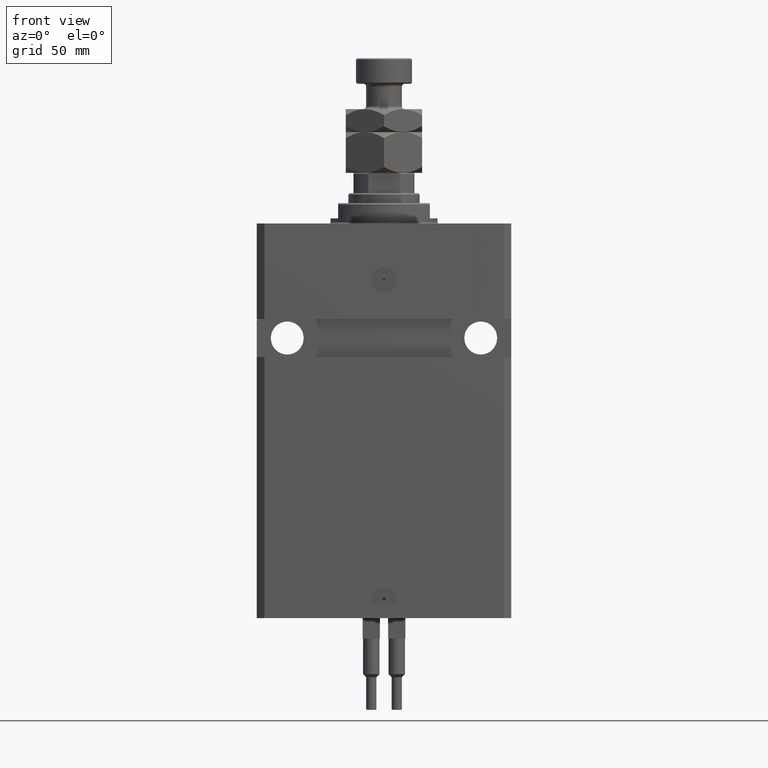
[diagram: clean part render]
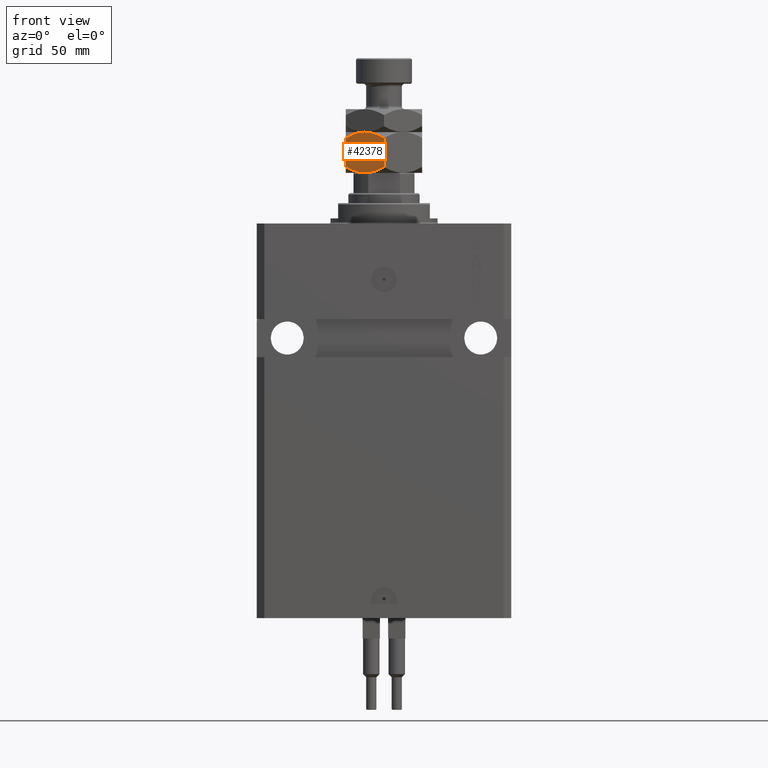
[diagram: same view with one face highlighted and labeled with its STEP entity id]
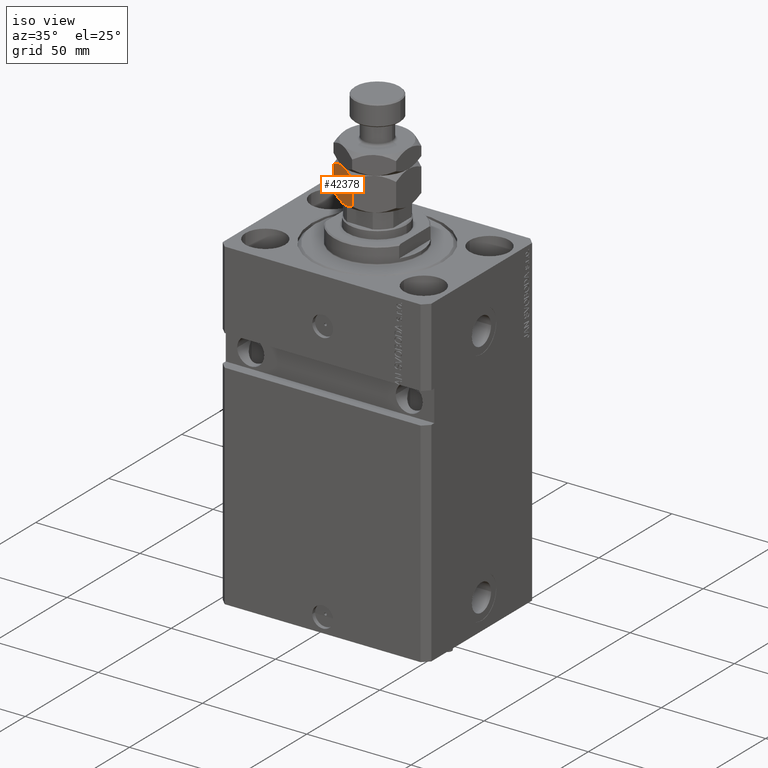
[diagram: same view with one face highlighted and labeled with its STEP entity id]
A machine part, front view. The second image highlights one B-rep face of the part: STEP entity #42378.
A second angle (iso view) of the same face is appended — the face is thin or edge-on in the first view.
In plain terms, the highlighted planar face has unit normal (0.5, 0.866, 0).
Its self-contained STEP definition (entity closure, byte-faithful):
#786 = CARTESIAN_POINT ( 'NONE',  ( -7.500000000000000000, -12.99038105676658006, 0.000000000000000000 ) ) ;
#1611 = CARTESIAN_POINT ( 'NONE',  ( -3.416099238086855886E-15, -17.32050807568877104, 13.67949192431124317 ) ) ;
#1896 = VECTOR ( 'NONE', #45554, 1000.000000000000000 ) ;
#2331 = FACE_OUTER_BOUND ( 'NONE', #37812, .T. ) ;
#2911 = ORIENTED_EDGE ( 'NONE', *, *, #20143, .T. ) ;
#6367 = CARTESIAN_POINT ( 'NONE',  ( -7.500000000000000000, -12.99038105676658006, 0.000000000000000000 ) ) ;
#6523 = CARTESIAN_POINT ( 'NONE',  ( -2.378834511187505996, -15.94708733029708725, 1.064486067744005560 ) ) ;
#6677 = CARTESIAN_POINT ( 'NONE',  ( -14.99999999999999645, -8.660254037844389075, 16.00000000000000000 ) ) ;
#6817 = ORIENTED_EDGE ( 'NONE', *, *, #14100, .F. ) ;
#7225 = CARTESIAN_POINT ( 'NONE',  ( -14.99999999999999645, -8.660254037844389075, 13.67949192431124139 ) ) ;
#7462 = VERTEX_POINT ( 'NONE', #1611 ) ;
#7729 = CARTESIAN_POINT ( 'NONE',  ( -13.82389157469335750, -9.339280553791368789, 14.35851844025821933 ) ) ;
#11066 = LINE ( 'NONE', #26180, #18477 ) ;
#11822 = CARTESIAN_POINT ( 'NONE',  ( -10.75222765045651308, -11.11270654730956409, 15.55242859148697576 ) ) ;
#14100 = EDGE_CURVE ( 'NONE', #43569, #19627, #25364, .T. ) ;
#14226 = CARTESIAN_POINT ( 'NONE',  ( -4.247772349543487813, -14.86805556622358893, 0.4475714085130264031 ) ) ;
#15871 = CARTESIAN_POINT ( 'NONE',  ( -7.500000000000001776, -12.99038105676658361, 16.00000000000000000 ) ) ;
#17416 = CARTESIAN_POINT ( 'NONE',  ( -13.82525345580783060, -9.338494271363318333, 1.642267842169780279 ) ) ;
#18166 = CARTESIAN_POINT ( 'NONE',  ( -14.99999999999999645, -8.660254037844389075, 2.320508075688762606 ) ) ;
#18477 = VECTOR ( 'NONE', #41828, 1000.000000000000000 ) ;
#18585 = CARTESIAN_POINT ( 'NONE',  ( -6.843123817691746602, -13.36962869744650284, -3.760826285809093999E-16 ) ) ;
#19015 = CARTESIAN_POINT ( 'NONE',  ( -8.823580389329300999, -12.22621156269320331, 15.94046462602529957 ) ) ;
#19329 = ORIENTED_EDGE ( 'NONE', *, *, #25485, .F. ) ;
#19627 = VERTEX_POINT ( 'NONE', #786 ) ;
#20143 = EDGE_CURVE ( 'NONE', #37681, #31588, #38363, .T. ) ;
#20228 = CARTESIAN_POINT ( 'NONE',  ( -6.195449321423087241, -13.74356374221446586, 16.00000000000001066 ) ) ;
#20383 = ORIENTED_EDGE ( 'NONE', *, *, #38809, .F. ) ;
#22161 = CARTESIAN_POINT ( 'NONE',  ( -1.176108425306644722, -16.64148155974179488, 1.641481559741788665 ) ) ;
#22314 = DIRECTION ( 'NONE',  ( 0.5000000000000000000, 0.8660254037844387076, -0.000000000000000000 ) ) ;
#22429 = B_SPLINE_CURVE_WITH_KNOTS ( 'NONE', 3,
 ( #15871, #20228, #35861, #31010, #47150, #31263 ),
 .UNSPECIFIED., .F., .F.,
 ( 4, 2, 4 ),
 ( 0.008977392552884447263, 0.01343452311421656359, 0.01789165367554867991 ),
 .UNSPECIFIED. ) ;
#22861 = CARTESIAN_POINT ( 'NONE',  ( -12.62116548881249223, -10.03367478323606221, 14.93551393225599533 ) ) ;
#25166 = PLANE ( 'NONE',  #46301 ) ;
#25364 = B_SPLINE_CURVE_WITH_KNOTS ( 'NONE', 3,
 ( #33966, #22161, #6523, #14226, #41918, #50114, #18585, #45763 ),
 .UNSPECIFIED., .F., .F.,
 ( 4, 2, 2, 4 ),
 ( 2.544309033648719118E-07, 0.004488823491893905240, 0.006733108022389175384, 0.008977392552884445528 ),
 .UNSPECIFIED. ) ;
#25485 = EDGE_CURVE ( 'NONE', #7462, #43569, #11066, .T. ) ;
#25627 = EDGE_CURVE ( 'NONE', #37681, #46868, #34227, .T. ) ;
#26180 = CARTESIAN_POINT ( 'NONE',  ( -3.035766082959412415E-15, -17.32050807568877104, 16.00000000000000000 ) ) ;
#26358 = CARTESIAN_POINT ( 'NONE',  ( -10.08691881950258740, -11.49682277995505331, 0.2303299219392165864 ) ) ;
#31010 = CARTESIAN_POINT ( 'NONE',  ( -2.383929548160354628, -15.94414570932928576, 14.93952096862912526 ) ) ;
#31263 = CARTESIAN_POINT ( 'NONE',  ( -3.416099238086855886E-15, -17.32050807568877104, 13.67949192431124317 ) ) ;
#31588 = VERTEX_POINT ( 'NONE', #50193 ) ;
#33966 = CARTESIAN_POINT ( 'NONE',  ( -2.796947266322166691E-15, -17.32050807568877104, 2.320508075688761718 ) ) ;
#34227 = B_SPLINE_CURVE_WITH_KNOTS ( 'NONE', 3,
 ( #7225, #7729, #22861, #11822, #46698, #19015, #38497, #34900 ),
 .UNSPECIFIED., .F., .F.,
 ( 4, 2, 2, 4 ),
 ( 2.544309033641602453E-07, 0.004488823491893906108, 0.006733108022389176252, 0.008977392552884447263 ),
 .UNSPECIFIED. ) ;
#34900 = CARTESIAN_POINT ( 'NONE',  ( -7.500000000000001776, -12.99038105676658361, 16.00000000000000000 ) ) ;
#35861 = CARTESIAN_POINT ( 'NONE',  ( -4.913081180497412603, -14.48393933357810504, 15.76967007806078946 ) ) ;
#37681 = VERTEX_POINT ( 'NONE', #43364 ) ;
#37812 = EDGE_LOOP ( 'NONE', ( #6817, #19329, #20383, #47107, #2911, #44210 ) ) ;
#37973 = DIRECTION ( 'NONE',  ( -0.8660254037844385966, 0.4999999999999999445, 0.000000000000000000 ) ) ;
#38113 = CARTESIAN_POINT ( 'NONE',  ( -14.99999999999999645, -8.660254037844389075, 16.00000000000000000 ) ) ;
#38363 = LINE ( 'NONE', #38113, #1896 ) ;
#38497 = CARTESIAN_POINT ( 'NONE',  ( -8.156876182308250733, -12.61113341608665905, 16.00000000000000355 ) ) ;
#38809 = EDGE_CURVE ( 'NONE', #46868, #7462, #22429, .T. ) ;
#40054 = EDGE_CURVE ( 'NONE', #19627, #31588, #43139, .T. ) ;
#41006 = CARTESIAN_POINT ( 'NONE',  ( -8.804550678576912759, -12.23719837131869248, -4.878909776184767981E-16 ) ) ;
#41828 = DIRECTION ( 'NONE',  ( -0.000000000000000000, -0.000000000000000000, -1.000000000000000000 ) ) ;
#41918 = CARTESIAN_POINT ( 'NONE',  ( -4.881674457977378090, -14.50207201327941320, 0.2838026619462943323 ) ) ;
#42007 = CARTESIAN_POINT ( 'NONE',  ( -12.61607045183964715, -10.03661640420386902, 1.060479031370877845 ) ) ;
#42378 = ADVANCED_FACE ( 'NONE', ( #2331 ), #25166, .F. ) ;
#42589 = CARTESIAN_POINT ( 'NONE',  ( -2.796947266322166691E-15, -17.32050807568877104, 2.320508075688761718 ) ) ;
#42974 = CARTESIAN_POINT ( 'NONE',  ( -7.500000000000001776, -12.99038105676658361, 16.00000000000000000 ) ) ;
#43139 = B_SPLINE_CURVE_WITH_KNOTS ( 'NONE', 3,
 ( #6367, #41006, #26358, #42007, #17416, #18166 ),
 .UNSPECIFIED., .F., .F.,
 ( 4, 2, 4 ),
 ( 0.008977392552884445528, 0.01343452311421656012, 0.01789165367554867297 ),
 .UNSPECIFIED. ) ;
#43364 = CARTESIAN_POINT ( 'NONE',  ( -14.99999999999999645, -8.660254037844389075, 13.67949192431124139 ) ) ;
#43569 = VERTEX_POINT ( 'NONE', #42589 ) ;
#44210 = ORIENTED_EDGE ( 'NONE', *, *, #40054, .F. ) ;
#45554 = DIRECTION ( 'NONE',  ( -0.000000000000000000, -0.000000000000000000, -1.000000000000000000 ) ) ;
#45763 = CARTESIAN_POINT ( 'NONE',  ( -7.500000000000000000, -12.99038105676658006, 0.000000000000000000 ) ) ;
#46301 = AXIS2_PLACEMENT_3D ( 'NONE', #6677, #22314, #37973 ) ;
#46698 = CARTESIAN_POINT ( 'NONE',  ( -10.11832554202262102, -11.47869010025374692, 15.71619733805371411 ) ) ;
#46868 = VERTEX_POINT ( 'NONE', #42974 ) ;
#47107 = ORIENTED_EDGE ( 'NONE', *, *, #25627, .F. ) ;
#47150 = CARTESIAN_POINT ( 'NONE',  ( -1.174746544192163844, -16.64226784216984711, 14.35773215783022572 ) ) ;
#50114 = CARTESIAN_POINT ( 'NONE',  ( -6.176419610670697224, -13.75455055083996214, 0.05953537397470286957 ) ) ;
#50193 = CARTESIAN_POINT ( 'NONE',  ( -14.99999999999999645, -8.660254037844389075, 2.320508075688762606 ) ) ;